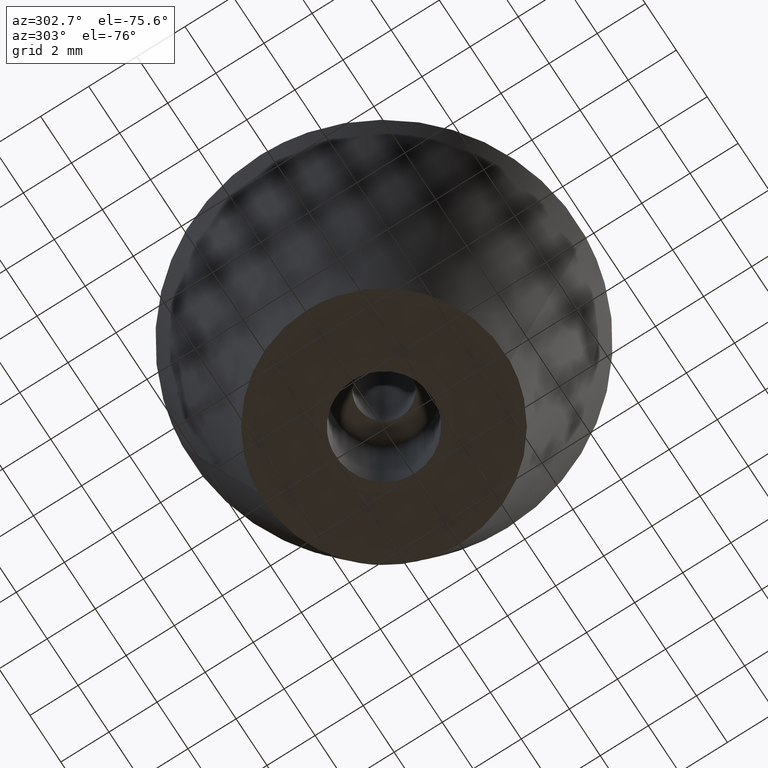
[diagram: clean part render]
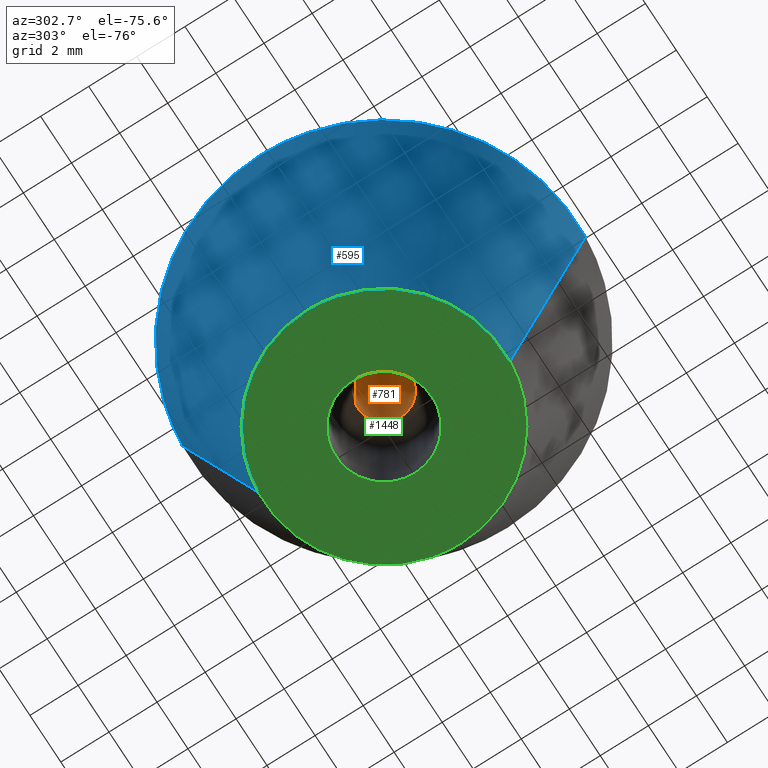
[diagram: same view with three faces highlighted in distinct colors, each labeled with its STEP entity id]
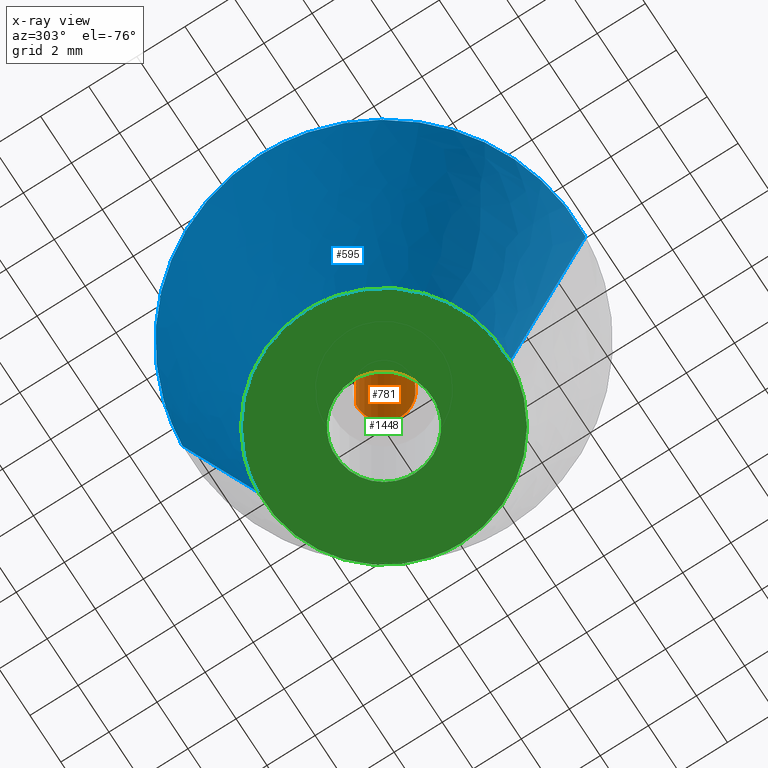
[diagram: x-ray of the same camera — body ghosted, the three highlighted faces saturated]
A machine part, auxiliary view with three faces highlighted in distinct colors.
The next image is the same camera in x-ray (body ghosted, the three faces saturated) — at least one of them is partly hidden behind the body in this view.
Their STEP definitions:

[orange] entity #781 — the highlighted face is a freeform B-spline surface patch.
#679=CARTESIAN_POINT('',(-0.129837658122434,1.092310479000033,12.175000000000002));
#680=CARTESIAN_POINT('',(-0.098576201501775,1.096026376993467,12.175000000000002));
#681=CARTESIAN_POINT('',(-0.067153393488343,1.097948278264053,12.175000000000001));
#682=CARTESIAN_POINT('',(1.030794884775711,1.165101671752396,12.175000000000001));
#683=CARTESIAN_POINT('',(1.097948278264053,0.067153393488343,12.175000000000001));
#684=CARTESIAN_POINT('',(1.165101671752396,-1.030794884775711,12.175000000000001));
#685=CARTESIAN_POINT('',(0.067153393488343,-1.097948278264053,12.175000000000001));
#686=CARTESIAN_POINT('',(-0.129837658122434,1.092310479000033,4.820625000000000));
#687=CARTESIAN_POINT('',(-0.098576201501775,1.096026376993467,4.820624999999999));
#688=CARTESIAN_POINT('',(-0.067153393488343,1.097948278264053,4.820624999999999));
#689=CARTESIAN_POINT('',(1.030794884775711,1.165101671752396,4.820624999999999));
#690=CARTESIAN_POINT('',(1.097948278264053,0.067153393488343,4.820624999999999));
#691=CARTESIAN_POINT('',(1.165101671752396,-1.030794884775711,4.820624999999999));
#692=CARTESIAN_POINT('',(0.067153393488343,-1.097948278264053,4.820624999999999));
#700=(BOUNDED_SURFACE()B_SPLINE_SURFACE(2,1,((#679,#686),(#680,#687),(#681,#688),(#682,#689),(#683,#690),(#684,#691),(#685,#692)),.UNSPECIFIED.,.F.,.F.,.U.)B_SPLINE_SURFACE_WITH_KNOTS((3,2,2,3),(2,2),(3.078760800517997,3.141592653589793,4.712388980384690,6.283185307179586),(0.0,7.354375000000004),.UNSPECIFIED.)GEOMETRIC_REPRESENTATION_ITEM()RATIONAL_B_SPLINE_SURFACE(((0.977505800795127,0.977505800795127),(0.988284271247462,0.988284271247462),(1.0,1.0),(0.707106781186548,0.707106781186548),(1.0,1.0),(0.707106781186548,0.707106781186548),(1.0,1.0)))REPRESENTATION_ITEM('')SURFACE());
#701=CARTESIAN_POINT('',(-0.129835685511386,1.092310713471145,12.000000000000011));
#702=VERTEX_POINT('',#701);
#703=CARTESIAN_POINT('',(1.100000000000000,0.0,12.0));
#704=VERTEX_POINT('',#703);
#705=CARTESIAN_POINT('',(-0.129835685511386,1.092310713471145,12.000000000000012));
#706=CARTESIAN_POINT('',(-0.065145534884748,1.100000000000000,12.000000000000002));
#707=CARTESIAN_POINT('',(0.0,1.100000000000000,12.0));
#708=CARTESIAN_POINT('',(1.100000000000000,1.100000000000000,12.0));
#709=CARTESIAN_POINT('',(1.100000000000000,0.0,12.0));
#717=(BOUNDED_CURVE()B_SPLINE_CURVE(2,(#705,#706,#707,#708,#709),.UNSPECIFIED.,.F.,.U.)B_SPLINE_CURVE_WITH_KNOTS((3,2,3),(0.229562778719813,0.250000000000000,0.500000000000000),.UNSPECIFIED.)CURVE()GEOMETRIC_REPRESENTATION_ITEM()RATIONAL_B_SPLINE_CURVE((0.956027352401419,0.976056305902572,1.0,0.707106781186548,1.0))REPRESENTATION_ITEM(''));
#718=EDGE_CURVE('',#702,#704,#717,.T.);
#719=ORIENTED_EDGE('',*,*,#718,.F.);
#720=CARTESIAN_POINT('',(-0.129835709327981,1.092310710640268,5.0));
#721=VERTEX_POINT('',#720);
#722=CARTESIAN_POINT('',(-0.129835685511386,1.092310713471145,12.000000000000011));
#723=CARTESIAN_POINT('',(-0.129835709327981,1.092310710640268,5.0));
#724=QUASI_UNIFORM_CURVE('',1,(#722,#723),.UNSPECIFIED.,.F.,.U.);
#725=EDGE_CURVE('',#702,#721,#724,.T.);
#726=ORIENTED_EDGE('',*,*,#725,.T.);
#727=CARTESIAN_POINT('',(1.100000000000000,0.0,5.0));
#728=VERTEX_POINT('',#727);
#729=CARTESIAN_POINT('',(-0.129835709327981,1.092310710640269,5.0));
#730=CARTESIAN_POINT('',(-0.065145546918932,1.100000000000000,4.999999999999999));
#731=CARTESIAN_POINT('',(0.0,1.100000000000000,5.0));
#732=CARTESIAN_POINT('',(1.100000000000000,1.100000000000000,5.000000000000001));
#733=CARTESIAN_POINT('',(1.100000000000000,0.0,5.0));
#741=(BOUNDED_CURVE()B_SPLINE_CURVE(2,(#729,#730,#731,#732,#733),.UNSPECIFIED.,.F.,.U.)B_SPLINE_CURVE_WITH_KNOTS((3,2,3),(0.229562775034887,0.250000000000000,0.500000000000000),.UNSPECIFIED.)CURVE()GEOMETRIC_REPRESENTATION_ITEM()RATIONAL_B_SPLINE_CURVE((0.956027345178793,0.976056301585414,1.0,0.707106781186548,1.0))REPRESENTATION_ITEM(''));
#742=EDGE_CURVE('',#721,#728,#741,.T.);
#743=ORIENTED_EDGE('',*,*,#742,.T.);
#744=CARTESIAN_POINT('',(0.067153393495066,-1.097948278263643,5.0));
#745=VERTEX_POINT('',#744);
#746=CARTESIAN_POINT('',(1.100000000000000,0.0,5.0));
#747=CARTESIAN_POINT('',(1.100000000000000,-1.034776673583570,4.999999999999999));
#748=CARTESIAN_POINT('',(0.067153393495066,-1.097948278263642,5.0));
#756=(BOUNDED_CURVE()B_SPLINE_CURVE(2,(#746,#747,#748),.UNSPECIFIED.,.F.,.U.)B_SPLINE_CURVE_WITH_KNOTS((3,3),(0.500000000000000,0.739332962239855),.UNSPECIFIED.)CURVE()GEOMETRIC_REPRESENTATION_ITEM()RATIONAL_B_SPLINE_CURVE((1.0,0.719603993285641,0.976072041668673))REPRESENTATION_ITEM(''));
#757=EDGE_CURVE('',#728,#745,#756,.T.);
#758=ORIENTED_EDGE('',*,*,#757,.T.);
#759=CARTESIAN_POINT('',(0.067153393495066,-1.097948278263642,12.0));
#760=VERTEX_POINT('',#759);
#761=CARTESIAN_POINT('',(0.067153393495066,-1.097948278263642,12.0));
#762=CARTESIAN_POINT('',(0.067153393495066,-1.097948278263643,5.0));
#763=QUASI_UNIFORM_CURVE('',1,(#761,#762),.UNSPECIFIED.,.F.,.U.);
#764=EDGE_CURVE('',#760,#745,#763,.T.);
#765=ORIENTED_EDGE('',*,*,#764,.F.);
#766=CARTESIAN_POINT('',(1.100000000000000,0.0,12.0));
#767=CARTESIAN_POINT('',(1.100000000000000,-1.034776673583570,12.0));
#768=CARTESIAN_POINT('',(0.067153393495066,-1.097948278263642,11.999999999999998));
#776=(BOUNDED_CURVE()B_SPLINE_CURVE(2,(#766,#767,#768),.UNSPECIFIED.,.F.,.U.)B_SPLINE_CURVE_WITH_KNOTS((3,3),(0.500000000000000,0.739332962239855),.UNSPECIFIED.)CURVE()GEOMETRIC_REPRESENTATION_ITEM()RATIONAL_B_SPLINE_CURVE((1.0,0.719603993285641,0.976072041668673))REPRESENTATION_ITEM(''));
#777=EDGE_CURVE('',#704,#760,#776,.T.);
#778=ORIENTED_EDGE('',*,*,#777,.F.);
#779=EDGE_LOOP('',(#719,#726,#743,#758,#765,#778));
#780=FACE_OUTER_BOUND('',#779,.T.);
#781=ADVANCED_FACE('',(#780),#700,.F.);

[blue] entity #595 — the highlighted face is a freeform B-spline surface patch.
#497=CARTESIAN_POINT('',(-0.386411046459639,4.909817868635654,-0.300000000000000));
#498=CARTESIAN_POINT('',(-5.296228915095294,4.523406822176014,-0.300000000000000));
#499=CARTESIAN_POINT('',(-4.909817868635654,-0.386411046459639,-0.300000000000000));
#500=CARTESIAN_POINT('',(-4.523406822176014,-5.296228915095294,-0.300000000000000));
#501=CARTESIAN_POINT('',(0.386411046459639,-4.909817868635654,-0.300000000000000));
#502=CARTESIAN_POINT('',(-0.633704308806842,8.051976689895756,12.307499999999999));
#503=CARTESIAN_POINT('',(-8.685680998702599,7.418272381088914,12.307500000000005));
#504=CARTESIAN_POINT('',(-8.051976689895756,-0.633704308806842,12.307499999999999));
#505=CARTESIAN_POINT('',(-7.418272381088914,-8.685680998702599,12.307500000000005));
#506=CARTESIAN_POINT('',(0.633704308806842,-8.051976689895756,12.307499999999999));
#514=(BOUNDED_SURFACE()B_SPLINE_SURFACE(2,1,((#497,#502),(#498,#503),(#499,#504),(#500,#505),(#501,#506)),.UNSPECIFIED.,.F.,.F.,.U.)B_SPLINE_SURFACE_WITH_KNOTS((3,2,3),(2,2),(0.0,13.382204666368770,26.764409332737529),(0.0,12.995513543743670),.UNSPECIFIED.)GEOMETRIC_REPRESENTATION_ITEM()RATIONAL_B_SPLINE_SURFACE(((1.0,1.0),(0.707106781186548,0.707106781186548),(1.0,1.0),(0.707106781186548,0.707106781186548),(1.0,1.0)))REPRESENTATION_ITEM('')SURFACE());
#515=CARTESIAN_POINT('',(-5.0,0.0,0.0));
#516=VERTEX_POINT('',#515);
#517=CARTESIAN_POINT('',(-0.392290246159730,4.984586259780227,-0.000003272620757));
#518=VERTEX_POINT('',#517);
#519=CARTESIAN_POINT('',(-5.0,0.0,0.0));
#520=CARTESIAN_POINT('',(-4.999999967904460,4.621956857583632,-0.000001636310378));
#521=CARTESIAN_POINT('',(-0.392290246159730,4.984586259780227,-0.000003272620757));
#529=(BOUNDED_CURVE()B_SPLINE_CURVE(2,(#519,#520,#521),.UNSPECIFIED.,.F.,.U.)B_SPLINE_CURVE_WITH_KNOTS((3,3),(0.0,0.236331478374955),.UNSPECIFIED.)CURVE()GEOMETRIC_REPRESENTATION_ITEM()RATIONAL_B_SPLINE_CURVE((1.0,0.723120450367271,0.969723727106498))REPRESENTATION_ITEM(''));
#530=EDGE_CURVE('',#516,#518,#529,.T.);
#531=ORIENTED_EDGE('',*,*,#530,.F.);
#532=CARTESIAN_POINT('',(0.392290246159729,-4.984586259780228,-0.000003272620757));
#533=VERTEX_POINT('',#532);
#534=CARTESIAN_POINT('',(0.392290246159729,-4.984586259780228,-0.000003272620757));
#535=CARTESIAN_POINT('',(0.196447875876698,-4.999999199175687,-0.000003213191667));
#536=CARTESIAN_POINT('',(-0.000000061764383,-4.999999215198685,-0.000003148901707));
#537=CARTESIAN_POINT('',(-5.000000029668843,-4.999999623016601,-0.000001512591328));
#538=CARTESIAN_POINT('',(-5.0,0.0,0.0));
#546=(BOUNDED_CURVE()B_SPLINE_CURVE(2,(#534,#535,#536,#537,#538),.UNSPECIFIED.,.F.,.U.)B_SPLINE_CURVE_WITH_KNOTS((3,2,3),(0.736331478374955,0.750000000000000,1.0),.UNSPECIFIED.)CURVE()GEOMETRIC_REPRESENTATION_ITEM()RATIONAL_B_SPLINE_CURVE((0.969723727106498,0.983986330819277,1.0,0.707106781186548,1.0))REPRESENTATION_ITEM(''));
#547=EDGE_CURVE('',#533,#516,#546,.T.);
#548=ORIENTED_EDGE('',*,*,#547,.F.);
#549=CARTESIAN_POINT('',(0.627668122354431,-7.975338299087095,11.999997064181500));
#550=VERTEX_POINT('',#549);
#551=CARTESIAN_POINT('',(0.392290246159729,-4.984586259780228,-0.000003272620757));
#552=CARTESIAN_POINT('',(0.627668122354431,-7.975338299087095,11.999997064181500));
#553=QUASI_UNIFORM_CURVE('',1,(#551,#552),.UNSPECIFIED.,.F.,.U.);
#554=EDGE_CURVE('',#533,#550,#553,.T.);
#555=ORIENTED_EDGE('',*,*,#554,.T.);
#556=CARTESIAN_POINT('',(-8.0,0.0,12.0));
#557=VERTEX_POINT('',#556);
#558=CARTESIAN_POINT('',(0.627668122354431,-7.975338299087096,11.999997064181498));
#559=CARTESIAN_POINT('',(0.314318495939624,-7.999999281593804,11.999997117494733));
#560=CARTESIAN_POINT('',(-0.000000055408124,-7.999999295967855,11.999997175168620));
#561=CARTESIAN_POINT('',(-8.000000026615574,-7.999999661814576,11.999998643077864));
#562=CARTESIAN_POINT('',(-8.0,0.0,12.0));
#570=(BOUNDED_CURVE()B_SPLINE_CURVE(2,(#558,#559,#560,#561,#562),.UNSPECIFIED.,.F.,.U.)B_SPLINE_CURVE_WITH_KNOTS((3,2,3),(0.736331399203222,0.750000000000000,1.0),.UNSPECIFIED.)CURVE()GEOMETRIC_REPRESENTATION_ITEM()RATIONAL_B_SPLINE_CURVE((0.969723561880926,0.983986238063822,1.0,0.707106781186548,1.0))REPRESENTATION_ITEM(''));
#571=EDGE_CURVE('',#550,#557,#570,.T.);
#572=ORIENTED_EDGE('',*,*,#571,.T.);
#573=CARTESIAN_POINT('',(-0.627668122354432,7.975338299087094,11.999997064181500));
#574=VERTEX_POINT('',#573);
#575=CARTESIAN_POINT('',(-8.0,0.0,12.0));
#576=CARTESIAN_POINT('',(-7.999999971207449,7.395127832823927,11.999998532090750));
#577=CARTESIAN_POINT('',(-0.627668122354432,7.975338299087094,11.999997064181498));
#585=(BOUNDED_CURVE()B_SPLINE_CURVE(2,(#575,#576,#577),.UNSPECIFIED.,.F.,.U.)B_SPLINE_CURVE_WITH_KNOTS((3,3),(0.0,0.236331399203222),.UNSPECIFIED.)CURVE()GEOMETRIC_REPRESENTATION_ITEM()RATIONAL_B_SPLINE_CURVE((1.0,0.723120543122726,0.969723561880926))REPRESENTATION_ITEM(''));
#586=EDGE_CURVE('',#557,#574,#585,.T.);
#587=ORIENTED_EDGE('',*,*,#586,.T.);
#588=CARTESIAN_POINT('',(-0.392290246159730,4.984586259780227,-0.000003272620757));
#589=CARTESIAN_POINT('',(-0.627668122354432,7.975338299087094,11.999997064181500));
#590=QUASI_UNIFORM_CURVE('',1,(#588,#589),.UNSPECIFIED.,.F.,.U.);
#591=EDGE_CURVE('',#518,#574,#590,.T.);
#592=ORIENTED_EDGE('',*,*,#591,.F.);
#593=EDGE_LOOP('',(#531,#548,#555,#572,#587,#592));
#594=FACE_OUTER_BOUND('',#593,.T.);
#595=ADVANCED_FACE('',(#594),#514,.T.);

[green] entity #1448 — the highlighted face is a freeform B-spline surface patch.
#515=CARTESIAN_POINT('',(-5.0,0.0,0.0));
#516=VERTEX_POINT('',#515);
#517=CARTESIAN_POINT('',(-0.392290246159730,4.984586259780227,-0.000003272620757));
#518=VERTEX_POINT('',#517);
#519=CARTESIAN_POINT('',(-5.0,0.0,0.0));
#520=CARTESIAN_POINT('',(-4.999999967904460,4.621956857583632,-0.000001636310378));
#521=CARTESIAN_POINT('',(-0.392290246159730,4.984586259780227,-0.000003272620757));
#529=(BOUNDED_CURVE()B_SPLINE_CURVE(2,(#519,#520,#521),.UNSPECIFIED.,.F.,.U.)B_SPLINE_CURVE_WITH_KNOTS((3,3),(0.0,0.236331478374955),.UNSPECIFIED.)CURVE()GEOMETRIC_REPRESENTATION_ITEM()RATIONAL_B_SPLINE_CURVE((1.0,0.723120450367271,0.969723727106498))REPRESENTATION_ITEM(''));
#530=EDGE_CURVE('',#516,#518,#529,.T.);
#532=CARTESIAN_POINT('',(0.392290246159729,-4.984586259780228,-0.000003272620757));
#533=VERTEX_POINT('',#532);
#534=CARTESIAN_POINT('',(0.392290246159729,-4.984586259780228,-0.000003272620757));
#535=CARTESIAN_POINT('',(0.196447875876698,-4.999999199175687,-0.000003213191667));
#536=CARTESIAN_POINT('',(-0.000000061764383,-4.999999215198685,-0.000003148901707));
#537=CARTESIAN_POINT('',(-5.000000029668843,-4.999999623016601,-0.000001512591328));
#538=CARTESIAN_POINT('',(-5.0,0.0,0.0));
#546=(BOUNDED_CURVE()B_SPLINE_CURVE(2,(#534,#535,#536,#537,#538),.UNSPECIFIED.,.F.,.U.)B_SPLINE_CURVE_WITH_KNOTS((3,2,3),(0.736331478374955,0.750000000000000,1.0),.UNSPECIFIED.)CURVE()GEOMETRIC_REPRESENTATION_ITEM()RATIONAL_B_SPLINE_CURVE((0.969723727106498,0.983986330819277,1.0,0.707106781186548,1.0))REPRESENTATION_ITEM(''));
#547=EDGE_CURVE('',#533,#516,#546,.T.);
#614=CARTESIAN_POINT('',(5.0,0.0,0.0));
#615=VERTEX_POINT('',#614);
#616=CARTESIAN_POINT('',(-0.392290246159730,4.984586259780227,-0.000003272620757));
#617=CARTESIAN_POINT('',(-0.196447875876697,4.999999199175686,-0.000003213191667));
#618=CARTESIAN_POINT('',(0.000000061764384,4.999999215198683,-0.000003148901707));
#619=CARTESIAN_POINT('',(5.000000029668843,4.999999623016601,-0.000001512591328));
#620=CARTESIAN_POINT('',(5.0,0.0,0.0));
#628=(BOUNDED_CURVE()B_SPLINE_CURVE(2,(#616,#617,#618,#619,#620),.UNSPECIFIED.,.F.,.U.)B_SPLINE_CURVE_WITH_KNOTS((3,2,3),(0.236331478374955,0.250000000000000,0.500000000000000),.UNSPECIFIED.)CURVE()GEOMETRIC_REPRESENTATION_ITEM()RATIONAL_B_SPLINE_CURVE((0.969723727106498,0.983986330819277,1.0,0.707106781186548,1.0))REPRESENTATION_ITEM(''));
#629=EDGE_CURVE('',#518,#615,#628,.T.);
#663=CARTESIAN_POINT('',(5.0,0.0,0.0));
#664=CARTESIAN_POINT('',(4.999999967904460,-4.621956857583637,-0.000001636310378));
#665=CARTESIAN_POINT('',(0.392290246159729,-4.984586259780228,-0.000003272620757));
#673=(BOUNDED_CURVE()B_SPLINE_CURVE(2,(#663,#664,#665),.UNSPECIFIED.,.F.,.U.)B_SPLINE_CURVE_WITH_KNOTS((3,3),(0.500000000000000,0.736331478374955),.UNSPECIFIED.)CURVE()GEOMETRIC_REPRESENTATION_ITEM()RATIONAL_B_SPLINE_CURVE((1.0,0.723120450367271,0.969723727106498))REPRESENTATION_ITEM(''));
#674=EDGE_CURVE('',#615,#533,#673,.T.);
#1267=CARTESIAN_POINT('',(-0.236068469326730,1.986019052725762,-1.419714E-016));
#1268=VERTEX_POINT('',#1267);
#1269=CARTESIAN_POINT('',(2.0,0.0,0.0));
#1270=VERTEX_POINT('',#1269);
#1271=CARTESIAN_POINT('',(-0.236068469326730,1.986019052725762,-1.419714E-016));
#1272=CARTESIAN_POINT('',(-0.118448239317173,2.000000000000000,0.0));
#1273=CARTESIAN_POINT('',(0.0,2.0,0.0));
#1274=CARTESIAN_POINT('',(2.000000000000000,2.000000000000000,0.0));
#1275=CARTESIAN_POINT('',(2.0,0.0,0.0));
#1283=(BOUNDED_CURVE()B_SPLINE_CURVE(2,(#1271,#1272,#1273,#1274,#1275),.UNSPECIFIED.,.F.,.U.)B_SPLINE_CURVE_WITH_KNOTS((3,2,3),(0.229562473513396,0.250000000000000,0.500000000000000),.UNSPECIFIED.)CURVE()GEOMETRIC_REPRESENTATION_ITEM()RATIONAL_B_SPLINE_CURVE((0.956026754183478,0.976055948331013,1.0,0.707106781186548,1.0))REPRESENTATION_ITEM(''));
#1284=EDGE_CURVE('',#1268,#1270,#1283,.T.);
#1286=CARTESIAN_POINT('',(0.122097079088601,-1.996269596842578,-1.318390E-016));
#1287=VERTEX_POINT('',#1286);
#1288=CARTESIAN_POINT('',(2.0,0.0,0.0));
#1289=CARTESIAN_POINT('',(1.999999999999999,-1.881412133775720,0.0));
#1290=CARTESIAN_POINT('',(0.122097079088601,-1.996269596842579,-1.318390E-016));
#1298=(BOUNDED_CURVE()B_SPLINE_CURVE(2,(#1288,#1289,#1290),.UNSPECIFIED.,.F.,.U.)B_SPLINE_CURVE_WITH_KNOTS((3,3),(0.500000000000000,0.739332962238703),.UNSPECIFIED.)CURVE()GEOMETRIC_REPRESENTATION_ITEM()RATIONAL_B_SPLINE_CURVE((1.0,0.719603993286991,0.976072041666204))REPRESENTATION_ITEM(''));
#1299=EDGE_CURVE('',#1270,#1287,#1298,.T.);
#1366=CARTESIAN_POINT('',(-2.0,0.0,0.0));
#1367=VERTEX_POINT('',#1366);
#1368=CARTESIAN_POINT('',(-2.0,0.0,0.0));
#1369=CARTESIAN_POINT('',(-2.000000000000000,1.776349051878934,0.0));
#1370=CARTESIAN_POINT('',(-0.236068469326730,1.986019052725762,-1.419714E-016));
#1378=(BOUNDED_CURVE()B_SPLINE_CURVE(2,(#1368,#1369,#1370),.UNSPECIFIED.,.F.,.U.)B_SPLINE_CURVE_WITH_KNOTS((3,3),(0.0,0.229562473513396),.UNSPECIFIED.)CURVE()GEOMETRIC_REPRESENTATION_ITEM()RATIONAL_B_SPLINE_CURVE((1.0,0.731050832855535,0.956026754183478))REPRESENTATION_ITEM(''));
#1379=EDGE_CURVE('',#1367,#1268,#1378,.T.);
#1413=CARTESIAN_POINT('',(0.122097079088601,-1.996269596842578,-1.318390E-016));
#1414=CARTESIAN_POINT('',(0.061105526616117,-2.000000000000000,0.0));
#1415=CARTESIAN_POINT('',(0.0,-2.0,0.0));
#1416=CARTESIAN_POINT('',(-2.000000000000000,-2.000000000000000,0.0));
#1417=CARTESIAN_POINT('',(-2.0,0.0,0.0));
#1425=(BOUNDED_CURVE()B_SPLINE_CURVE(2,(#1413,#1414,#1415,#1416,#1417),.UNSPECIFIED.,.F.,.U.)B_SPLINE_CURVE_WITH_KNOTS((3,2,3),(0.739332962238703,0.750000000000000,1.0),.UNSPECIFIED.)CURVE()GEOMETRIC_REPRESENTATION_ITEM()RATIONAL_B_SPLINE_CURVE((0.976072041666204,0.987502787899557,1.0,0.707106781186548,1.0))REPRESENTATION_ITEM(''));
#1426=EDGE_CURVE('',#1287,#1367,#1425,.T.);
#1431=CARTESIAN_POINT('',(-5.499499980618060,-5.497973258543010,0.0));
#1432=CARTESIAN_POINT('',(5.499500248838961,-5.497973258543010,0.0));
#1433=CARTESIAN_POINT('',(-5.499499980618060,5.497973258543010,0.0));
#1434=CARTESIAN_POINT('',(5.499500248838961,5.497973258543010,0.0));
#1435=B_SPLINE_SURFACE_WITH_KNOTS('',1,1,((#1431,#1433),(#1432,#1434)),.UNSPECIFIED.,.F.,.F.,.U.,(2,2),(2,2),(0.0,10.999000229457019),(0.0,10.995946517086020),.UNSPECIFIED.);
#1436=ORIENTED_EDGE('',*,*,#530,.T.);
#1437=ORIENTED_EDGE('',*,*,#629,.T.);
#1438=ORIENTED_EDGE('',*,*,#674,.T.);
#1439=ORIENTED_EDGE('',*,*,#547,.T.);
#1440=EDGE_LOOP('',(#1436,#1437,#1438,#1439));
#1441=FACE_OUTER_BOUND('',#1440,.T.);
#1442=ORIENTED_EDGE('',*,*,#1299,.F.);
#1443=ORIENTED_EDGE('',*,*,#1284,.F.);
#1444=ORIENTED_EDGE('',*,*,#1379,.F.);
#1445=ORIENTED_EDGE('',*,*,#1426,.F.);
#1446=EDGE_LOOP('',(#1442,#1443,#1444,#1445));
#1447=FACE_BOUND('',#1446,.T.);
#1448=ADVANCED_FACE('',(#1441,#1447),#1435,.F.);